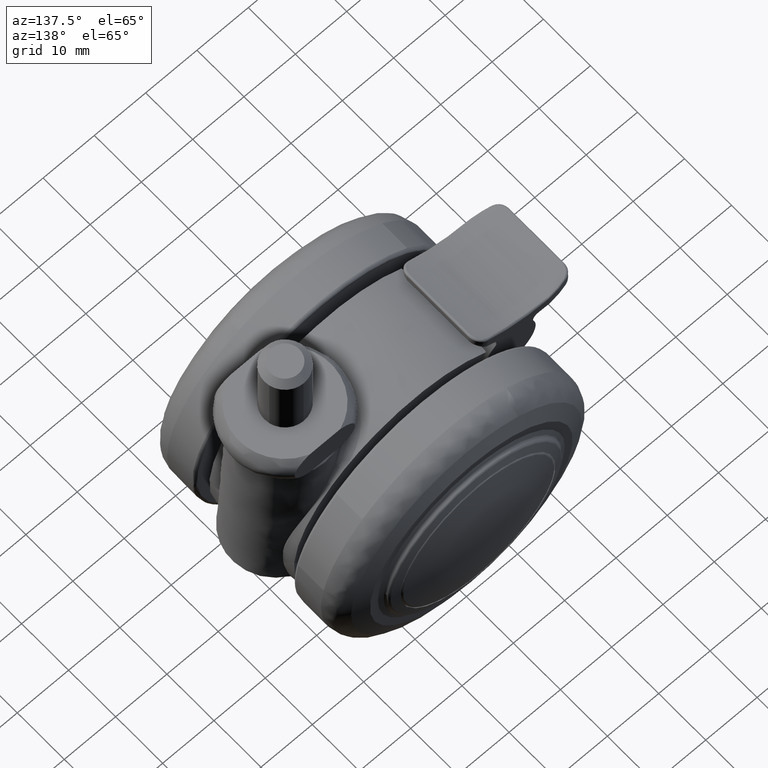
[diagram: clean part render]
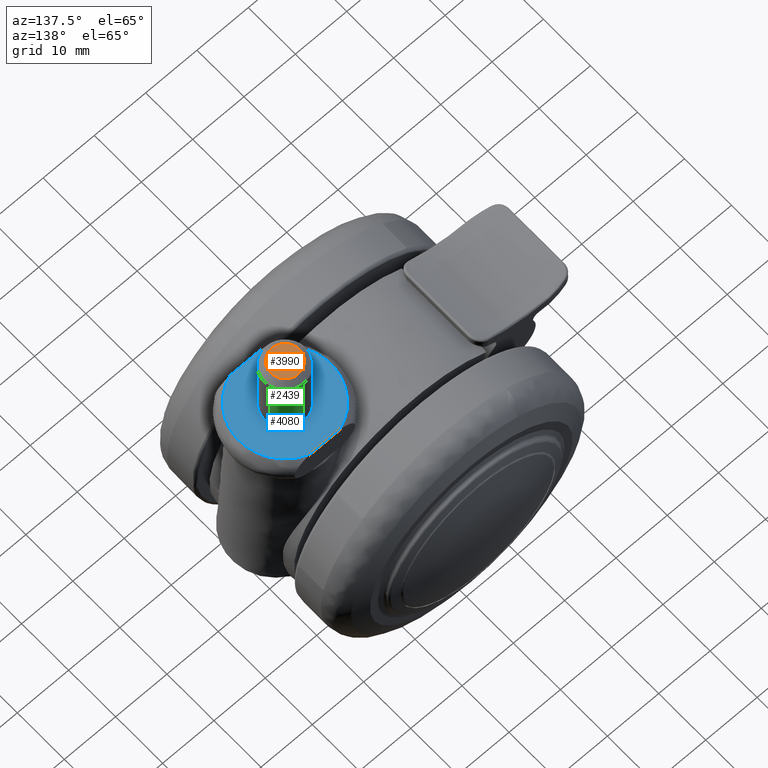
[diagram: same view with three faces highlighted in distinct colors, each labeled with its STEP entity id]
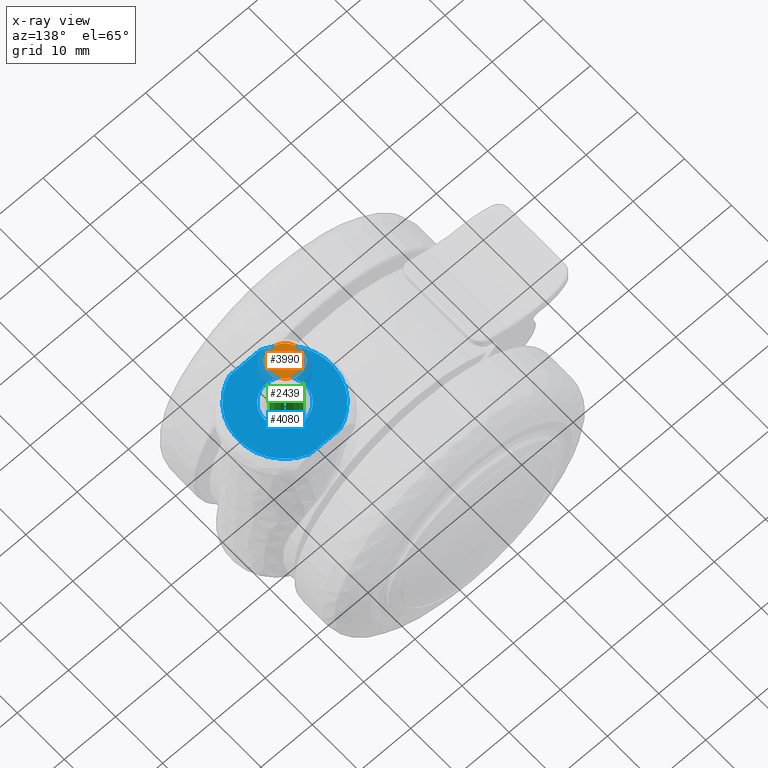
[diagram: x-ray of the same camera — body ghosted, the three highlighted faces saturated]
A machine part, auxiliary view with three faces highlighted in distinct colors.
The next image is the same camera in x-ray (body ghosted, the three faces saturated) — at least one of them is partly hidden behind the body in this view.
Their STEP definitions:

[orange] entity #3990 — the highlighted face is a freeform B-spline surface patch.
#2463=CARTESIAN_POINT('',(16.669504142701779,2.780426673820168,46.499999999967500));
#2464=VERTEX_POINT('',#2463);
#2470=CARTESIAN_POINT('',(19.800000000000001,-3.459513E-015,46.500000000000000));
#2471=VERTEX_POINT('',#2470);
#2472=CARTESIAN_POINT('',(16.669504142701783,2.780426673820168,46.499999999967500));
#2473=CARTESIAN_POINT('',(16.834172464716488,2.799999999999998,46.500000000000000));
#2474=CARTESIAN_POINT('',(17.0,2.799999999999997,46.500000000000000));
#2475=CARTESIAN_POINT('',(19.800000000000001,2.799999999999997,46.500000000000007));
#2476=CARTESIAN_POINT('',(19.800000000000001,-3.459513E-015,46.500000000000000));
#2484=(BOUNDED_CURVE()B_SPLINE_CURVE(2,(#2472,#2473,#2474,#2475,#2476),.UNSPECIFIED.,.F.,.U.)B_SPLINE_CURVE_WITH_KNOTS((3,2,3),(0.229562473484589,0.250000000000000,0.500000000000000),.UNSPECIFIED.)CURVE()GEOMETRIC_REPRESENTATION_ITEM()RATIONAL_B_SPLINE_CURVE((0.956026754127016,0.976055948297264,1.0,0.707106781186547,1.0))REPRESENTATION_ITEM(''));
#2485=EDGE_CURVE('',#2464,#2471,#2484,.T.);
#2487=CARTESIAN_POINT('',(17.170935911085770,-2.794777435608350,46.499999999949239));
#2488=VERTEX_POINT('',#2487);
#2489=CARTESIAN_POINT('',(19.800000000000001,-3.459513E-015,46.500000000000000));
#2490=CARTESIAN_POINT('',(19.800000000000004,-2.633976986608764,46.500000000000000));
#2491=CARTESIAN_POINT('',(17.170935911085778,-2.794777435608351,46.499999999949232));
#2499=(BOUNDED_CURVE()B_SPLINE_CURVE(2,(#2489,#2490,#2491),.UNSPECIFIED.,.F.,.U.)B_SPLINE_CURVE_WITH_KNOTS((3,3),(0.500000000000000,0.739332962194421),.UNSPECIFIED.)CURVE()GEOMETRIC_REPRESENTATION_ITEM()RATIONAL_B_SPLINE_CURVE((1.0,0.719603993338871,0.976072041571298))REPRESENTATION_ITEM(''));
#2500=EDGE_CURVE('',#2471,#2488,#2499,.T.);
#2534=CARTESIAN_POINT('',(14.199999999999999,-3.459513E-015,46.500000000000000));
#2535=VERTEX_POINT('',#2534);
#2536=CARTESIAN_POINT('',(17.170935911085770,-2.794777435608351,46.499999999949246));
#2537=CARTESIAN_POINT('',(17.085547737622200,-2.800000000000004,46.500000000000000));
#2538=CARTESIAN_POINT('',(17.0,-2.800000000000003,46.500000000000000));
#2539=CARTESIAN_POINT('',(14.200000000000008,-2.800000000000003,46.500000000000007));
#2540=CARTESIAN_POINT('',(14.199999999999999,-3.459513E-015,46.500000000000000));
#2548=(BOUNDED_CURVE()B_SPLINE_CURVE(2,(#2536,#2537,#2538,#2539,#2540),.UNSPECIFIED.,.F.,.U.)B_SPLINE_CURVE_WITH_KNOTS((3,2,3),(0.739332962194421,0.750000000000000,1.0),.UNSPECIFIED.)CURVE()GEOMETRIC_REPRESENTATION_ITEM()RATIONAL_B_SPLINE_CURVE((0.976072041571298,0.987502787847676,1.0,0.707106781186547,1.0))REPRESENTATION_ITEM(''));
#2549=EDGE_CURVE('',#2488,#2535,#2548,.T.);
#2551=CARTESIAN_POINT('',(14.199999999999999,-3.459513E-015,46.500000000000000));
#2552=CARTESIAN_POINT('',(14.199999999999999,2.486888672203626,46.500000000000007));
#2553=CARTESIAN_POINT('',(16.669504142701776,2.780426673820168,46.499999999967500));
#2561=(BOUNDED_CURVE()B_SPLINE_CURVE(2,(#2551,#2552,#2553),.UNSPECIFIED.,.F.,.U.)B_SPLINE_CURVE_WITH_KNOTS((3,3),(0.0,0.229562473484589),.UNSPECIFIED.)CURVE()GEOMETRIC_REPRESENTATION_ITEM()RATIONAL_B_SPLINE_CURVE((1.0,0.731050832889284,0.956026754127016))REPRESENTATION_ITEM(''));
#2562=EDGE_CURVE('',#2535,#2464,#2561,.T.);
#3979=CARTESIAN_POINT('',(20.079719200614210,-3.079651839634646,46.500000000000000));
#3980=CARTESIAN_POINT('',(13.920279898163560,-3.079651839634646,46.500000000000000));
#3981=CARTESIAN_POINT('',(20.079719200614210,3.079669062992792,46.500000000000000));
#3982=CARTESIAN_POINT('',(13.920279898163560,3.079669062992792,46.500000000000000));
#3983=B_SPLINE_SURFACE_WITH_KNOTS('',1,1,((#3979,#3981),(#3980,#3982)),.UNSPECIFIED.,.F.,.F.,.U.,(2,2),(2,2),(0.0,6.159439302450657),(0.0,6.159320902627439),.UNSPECIFIED.);
#3984=ORIENTED_EDGE('',*,*,#2549,.F.);
#3985=ORIENTED_EDGE('',*,*,#2500,.F.);
#3986=ORIENTED_EDGE('',*,*,#2485,.F.);
#3987=ORIENTED_EDGE('',*,*,#2562,.F.);
#3988=EDGE_LOOP('',(#3984,#3985,#3986,#3987));
#3989=FACE_OUTER_BOUND('',#3988,.T.);
#3990=ADVANCED_FACE('',(#3989),#3983,.F.);

[blue] entity #4080 — the highlighted face is a freeform B-spline surface patch.
#2331=CARTESIAN_POINT('',(17.034906142190941,3.999847692254958,32.500000002522903));
#2332=VERTEX_POINT('',#2331);
#2338=CARTESIAN_POINT('',(13.0,-3.459513E-015,32.500000002522903));
#2339=VERTEX_POINT('',#2338);
#2340=CARTESIAN_POINT('',(17.034906142190941,3.999847692254959,32.500000002522903));
#2341=CARTESIAN_POINT('',(17.017453403480257,3.999999999999996,32.500000002522910));
#2342=CARTESIAN_POINT('',(17.0,3.999999999999996,32.500000002522903));
#2343=CARTESIAN_POINT('',(13.000000000000004,3.999999999999997,32.500000002522903));
#2344=CARTESIAN_POINT('',(13.0,-3.459513E-015,32.500000002522903));
#2352=(BOUNDED_CURVE()B_SPLINE_CURVE(2,(#2340,#2341,#2342,#2343,#2344),.UNSPECIFIED.,.F.,.U.)B_SPLINE_CURVE_WITH_KNOTS((3,2,3),(0.248460105647623,0.250000000000000,0.500000000000000),.UNSPECIFIED.)CURVE()GEOMETRIC_REPRESENTATION_ITEM()RATIONAL_B_SPLINE_CURVE((0.996414028060161,0.998195901545999,1.0,0.707106781186548,1.0))REPRESENTATION_ITEM(''));
#2353=EDGE_CURVE('',#2332,#2339,#2352,.T.);
#2355=CARTESIAN_POINT('',(21.0,-3.459513E-015,32.500000002522903));
#2356=VERTEX_POINT('',#2355);
#2357=CARTESIAN_POINT('',(13.0,-3.459513E-015,32.500000002522903));
#2358=CARTESIAN_POINT('',(13.000000000000004,-4.000000000000004,32.500000002522903));
#2359=CARTESIAN_POINT('',(17.0,-4.000000000000004,32.500000002522903));
#2360=CARTESIAN_POINT('',(21.000000000000004,-4.000000000000004,32.500000002522903));
#2361=CARTESIAN_POINT('',(21.0,-3.459513E-015,32.500000002522903));
#2369=(BOUNDED_CURVE()B_SPLINE_CURVE(2,(#2357,#2358,#2359,#2360,#2361),.UNSPECIFIED.,.F.,.U.)B_SPLINE_CURVE_WITH_KNOTS((3,2,3),(0.500000000000000,0.750000000000000,1.0),.UNSPECIFIED.)CURVE()GEOMETRIC_REPRESENTATION_ITEM()RATIONAL_B_SPLINE_CURVE((1.0,0.707106781186548,1.0,0.707106781186548,1.0))REPRESENTATION_ITEM(''));
#2370=EDGE_CURVE('',#2339,#2356,#2369,.T.);
#2372=CARTESIAN_POINT('',(20.896872612694420,0.902432180516741,32.500000002522903));
#2373=VERTEX_POINT('',#2372);
#2374=CARTESIAN_POINT('',(21.0,-3.459513E-015,32.500000002522903));
#2375=CARTESIAN_POINT('',(20.999999999999993,0.457108642808543,32.500000002522896));
#2376=CARTESIAN_POINT('',(20.896872612694413,0.902432180516741,32.500000002522910));
#2384=(BOUNDED_CURVE()B_SPLINE_CURVE(2,(#2374,#2375,#2376),.UNSPECIFIED.,.F.,.U.)B_SPLINE_CURVE_WITH_KNOTS((3,3),(0.0,0.038577028222610),.UNSPECIFIED.)CURVE()GEOMETRIC_REPRESENTATION_ITEM()RATIONAL_B_SPLINE_CURVE((1.0,0.954804200126489,0.923556557431090))REPRESENTATION_ITEM(''));
#2385=EDGE_CURVE('',#2356,#2373,#2384,.T.);
#2423=CARTESIAN_POINT('',(20.896872612694420,0.902432180516741,32.500000002522903));
#2424=CARTESIAN_POINT('',(20.185945673865270,3.972348986547468,32.500000002522910));
#2425=CARTESIAN_POINT('',(17.034906142190938,3.999847692254958,32.500000002522896));
#2433=(BOUNDED_CURVE()B_SPLINE_CURVE(2,(#2423,#2424,#2425),.UNSPECIFIED.,.F.,.U.)B_SPLINE_CURVE_WITH_KNOTS((3,3),(0.038577028222610,0.248460105647623),.UNSPECIFIED.)CURVE()GEOMETRIC_REPRESENTATION_ITEM()RATIONAL_B_SPLINE_CURVE((0.923556557431090,0.753549905458249,0.996414028060161))REPRESENTATION_ITEM(''));
#2434=EDGE_CURVE('',#2373,#2332,#2433,.T.);
#3686=CARTESIAN_POINT('',(14.041962204574659,8.500000000000000,32.500000000000000));
#3687=VERTEX_POINT('',#3686);
#3688=CARTESIAN_POINT('',(19.958037793544850,8.499999994596450,32.500000005045798));
#3689=VERTEX_POINT('',#3688);
#3690=CARTESIAN_POINT('',(14.041962204574659,8.500000000000000,32.500000000000000));
#3691=CARTESIAN_POINT('',(19.958037793544850,8.499999994596450,32.500000005045798));
#3692=QUASI_UNIFORM_CURVE('',1,(#3690,#3691),.UNSPECIFIED.,.F.,.U.);
#3693=EDGE_CURVE('',#3687,#3689,#3692,.T.);
#3835=CARTESIAN_POINT('',(14.041962204574659,-8.500000000000000,32.500000000000000));
#3836=VERTEX_POINT('',#3835);
#3909=CARTESIAN_POINT('',(19.958037795425351,-8.500000000000000,32.500000000000000));
#3910=VERTEX_POINT('',#3909);
#3971=CARTESIAN_POINT('',(14.041962204574659,-8.500000000000000,32.500000000000000));
#3972=CARTESIAN_POINT('',(19.958037795425351,-8.500000000000000,32.500000000000000));
#3973=QUASI_UNIFORM_CURVE('',1,(#3971,#3972),.UNSPECIFIED.,.F.,.U.);
#3974=EDGE_CURVE('',#3836,#3910,#3973,.T.);
#4030=CARTESIAN_POINT('',(19.958037793544850,8.499999994596452,32.500000005045798));
#4031=CARTESIAN_POINT('',(25.999999305343277,6.397370522784126,32.500000005045813));
#4032=CARTESIAN_POINT('',(25.999999305343270,0.0,32.500000005045798));
#4033=CARTESIAN_POINT('',(25.999999305343277,-6.397370522784093,32.500000005045813));
#4034=CARTESIAN_POINT('',(19.958037795425351,-8.500000000000000,32.500000000000000));
#4042=(BOUNDED_CURVE()B_SPLINE_CURVE(2,(#4030,#4031,#4032,#4033,#4034),.UNSPECIFIED.,.F.,.U.)B_SPLINE_CURVE_WITH_KNOTS((3,2,3),(0.0,0.500000000000000,1.0),.UNSPECIFIED.)CURVE()GEOMETRIC_REPRESENTATION_ITEM()RATIONAL_B_SPLINE_CURVE((1.0,0.815067755256454,1.0,0.815067755256454,1.0))REPRESENTATION_ITEM(''));
#4043=EDGE_CURVE('',#3689,#3910,#4042,.T.);
#4049=CARTESIAN_POINT('',(7.100900967911564,-9.349149967050700,32.500000002522903));
#4050=CARTESIAN_POINT('',(26.899099675818551,-9.349149967050700,32.500000002522903));
#4051=CARTESIAN_POINT('',(7.100900967911564,9.349150423026234,32.500000002522903));
#4052=CARTESIAN_POINT('',(26.899099675818551,9.349150423026234,32.500000002522903));
#4053=B_SPLINE_SURFACE_WITH_KNOTS('',1,1,((#4049,#4051),(#4050,#4052)),.UNSPECIFIED.,.F.,.F.,.U.,(2,2),(2,2),(0.0,19.798198707906980),(0.0,18.698300390076930),.UNSPECIFIED.);
#4054=ORIENTED_EDGE('',*,*,#3693,.F.);
#4055=CARTESIAN_POINT('',(14.041962204574659,-8.500000000000000,32.500000000000000));
#4056=CARTESIAN_POINT('',(8.000000694656734,-6.397370522784104,32.500000005045798));
#4057=CARTESIAN_POINT('',(8.000000694656732,0.0,32.500000005045798));
#4058=CARTESIAN_POINT('',(8.000000694656734,6.397370522784100,32.500000005045798));
#4059=CARTESIAN_POINT('',(14.041962204574659,8.500000000000000,32.500000000000000));
#4067=(BOUNDED_CURVE()B_SPLINE_CURVE(2,(#4055,#4056,#4057,#4058,#4059),.UNSPECIFIED.,.F.,.U.)B_SPLINE_CURVE_WITH_KNOTS((3,2,3),(0.0,0.500000000000000,1.0),.UNSPECIFIED.)CURVE()GEOMETRIC_REPRESENTATION_ITEM()RATIONAL_B_SPLINE_CURVE((1.0,0.815067755256454,1.0,0.815067755256454,1.0))REPRESENTATION_ITEM(''));
#4068=EDGE_CURVE('',#3836,#3687,#4067,.T.);
#4069=ORIENTED_EDGE('',*,*,#4068,.F.);
#4070=ORIENTED_EDGE('',*,*,#3974,.T.);
#4071=ORIENTED_EDGE('',*,*,#4043,.F.);
#4072=EDGE_LOOP('',(#4054,#4069,#4070,#4071));
#4073=FACE_OUTER_BOUND('',#4072,.T.);
#4074=ORIENTED_EDGE('',*,*,#2370,.F.);
#4075=ORIENTED_EDGE('',*,*,#2353,.F.);
#4076=ORIENTED_EDGE('',*,*,#2434,.F.);
#4077=ORIENTED_EDGE('',*,*,#2385,.F.);
#4078=EDGE_LOOP('',(#4074,#4075,#4076,#4077));
#4079=FACE_BOUND('',#4078,.T.);
#4080=ADVANCED_FACE('',(#4073,#4079),#4053,.T.);

[green] entity #2439 — the highlighted face is a freeform B-spline surface patch.
#2250=CARTESIAN_POINT('',(20.896873048529041,0.902430298496366,45.299999999999997));
#2251=VERTEX_POINT('',#2250);
#2314=CARTESIAN_POINT('',(17.034906142311339,3.999847692253908,45.299999999999997));
#2315=VERTEX_POINT('',#2314);
#2331=CARTESIAN_POINT('',(17.034906142190941,3.999847692254958,32.500000002522903));
#2332=VERTEX_POINT('',#2331);
#2333=CARTESIAN_POINT('',(17.034906142311339,3.999847692253908,45.299999999999997));
#2334=CARTESIAN_POINT('',(17.034906142190941,3.999847692254958,32.500000002522903));
#2335=QUASI_UNIFORM_CURVE('',1,(#2333,#2334),.UNSPECIFIED.,.F.,.U.);
#2336=EDGE_CURVE('',#2315,#2332,#2335,.T.);
#2372=CARTESIAN_POINT('',(20.896872612694420,0.902432180516741,32.500000002522903));
#2373=VERTEX_POINT('',#2372);
#2387=CARTESIAN_POINT('',(20.896873048529041,0.902430298496366,45.299999999999997));
#2388=CARTESIAN_POINT('',(20.896872612694420,0.902432180516741,32.500000002522903));
#2389=QUASI_UNIFORM_CURVE('',1,(#2387,#2388),.UNSPECIFIED.,.F.,.U.);
#2390=EDGE_CURVE('',#2251,#2373,#2389,.T.);
#2395=CARTESIAN_POINT('',(17.034906141993499,3.999847692256680,45.619999999936930));
#2396=CARTESIAN_POINT('',(20.185945673936388,3.972348986857961,45.619999999936930));
#2397=CARTESIAN_POINT('',(20.896872612714361,0.902432180430585,45.619999999936923));
#2398=CARTESIAN_POINT('',(17.034906141993499,3.999847692256680,32.172000002587552));
#2399=CARTESIAN_POINT('',(20.185945673936388,3.972348986857961,32.172000002587559));
#2400=CARTESIAN_POINT('',(20.896872612714361,0.902432180430585,32.172000002587538));
#2408=(BOUNDED_SURFACE()B_SPLINE_SURFACE(2,1,((#2395,#2398),(#2396,#2399),(#2397,#2400)),.UNSPECIFIED.,.F.,.F.,.U.)B_SPLINE_SURFACE_WITH_KNOTS((3,3),(2,2),(0.0,5.542685332142386),(0.0,13.447999997349390),.UNSPECIFIED.)GEOMETRIC_REPRESENTATION_ITEM()RATIONAL_B_SPLINE_SURFACE(((1.0,1.0),(0.753969696196700,0.753969696196700),(0.921270302782944,0.921270302782944)))REPRESENTATION_ITEM('')SURFACE());
#2409=CARTESIAN_POINT('',(17.034906142311346,3.999847692253908,45.299999999999990));
#2410=CARTESIAN_POINT('',(20.185947239292872,3.972348972696468,45.299999999999997));
#2411=CARTESIAN_POINT('',(20.896873048529038,0.902430298496366,45.299999999999997));
#2419=(BOUNDED_CURVE()B_SPLINE_CURVE(2,(#2409,#2410,#2411),.UNSPECIFIED.,.F.,.U.)B_SPLINE_CURVE_WITH_KNOTS((3,3),(0.251539894362982,0.461423050630074),.UNSPECIFIED.)CURVE()GEOMETRIC_REPRESENTATION_ITEM()RATIONAL_B_SPLINE_CURVE((0.996414028035619,0.753549814223237,0.923556685173517))REPRESENTATION_ITEM(''));
#2420=EDGE_CURVE('',#2315,#2251,#2419,.T.);
#2421=ORIENTED_EDGE('',*,*,#2420,.T.);
#2422=ORIENTED_EDGE('',*,*,#2390,.T.);
#2423=CARTESIAN_POINT('',(20.896872612694420,0.902432180516741,32.500000002522903));
#2424=CARTESIAN_POINT('',(20.185945673865270,3.972348986547468,32.500000002522910));
#2425=CARTESIAN_POINT('',(17.034906142190938,3.999847692254958,32.500000002522896));
#2433=(BOUNDED_CURVE()B_SPLINE_CURVE(2,(#2423,#2424,#2425),.UNSPECIFIED.,.F.,.U.)B_SPLINE_CURVE_WITH_KNOTS((3,3),(0.038577028222610,0.248460105647623),.UNSPECIFIED.)CURVE()GEOMETRIC_REPRESENTATION_ITEM()RATIONAL_B_SPLINE_CURVE((0.923556557431090,0.753549905458249,0.996414028060161))REPRESENTATION_ITEM(''));
#2434=EDGE_CURVE('',#2373,#2332,#2433,.T.);
#2435=ORIENTED_EDGE('',*,*,#2434,.T.);
#2436=ORIENTED_EDGE('',*,*,#2336,.F.);
#2437=EDGE_LOOP('',(#2421,#2422,#2435,#2436));
#2438=FACE_OUTER_BOUND('',#2437,.T.);
#2439=ADVANCED_FACE('',(#2438),#2408,.T.);